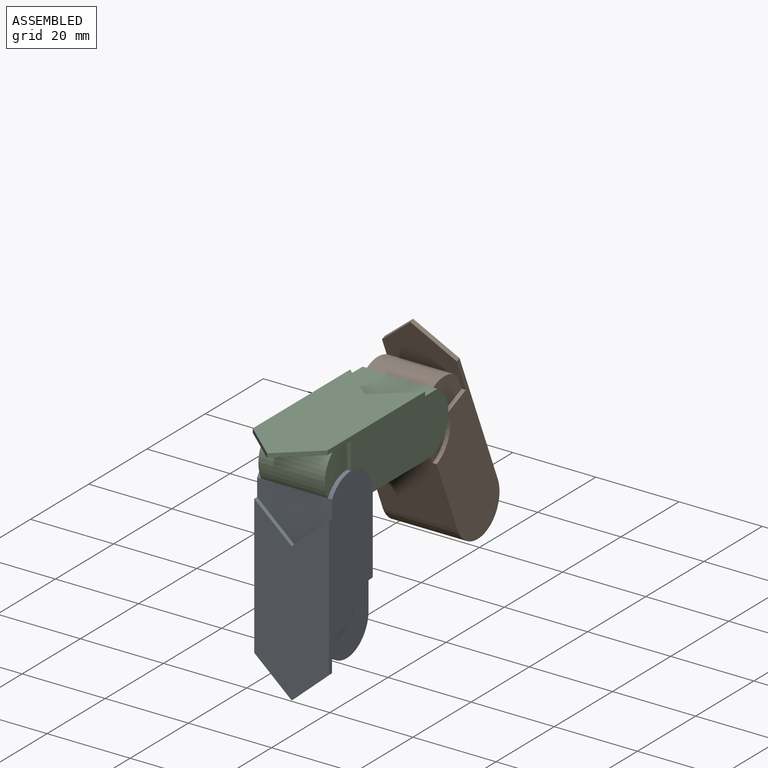
[diagram: assembled view]
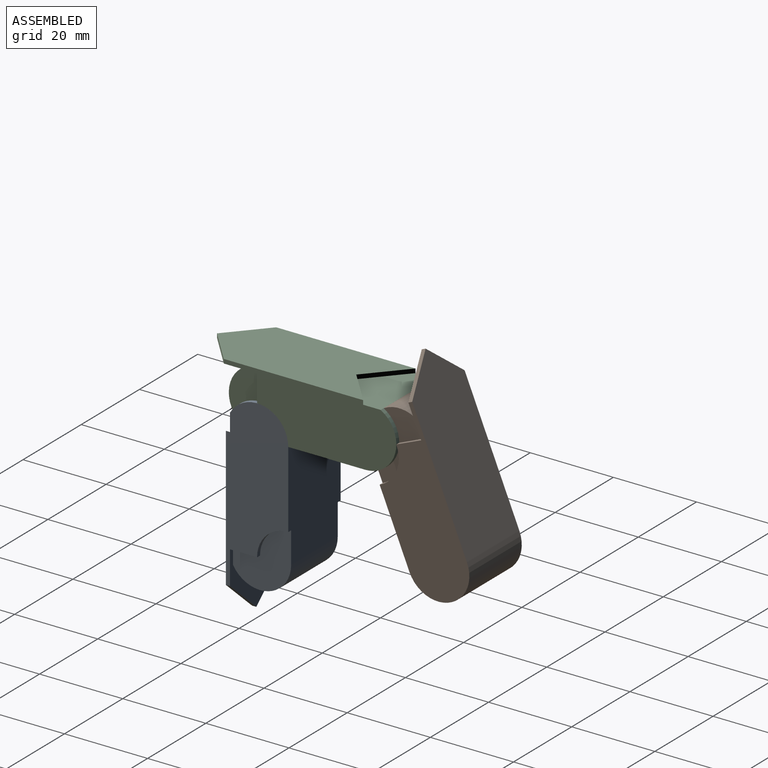
[diagram: assembled view, second angle]
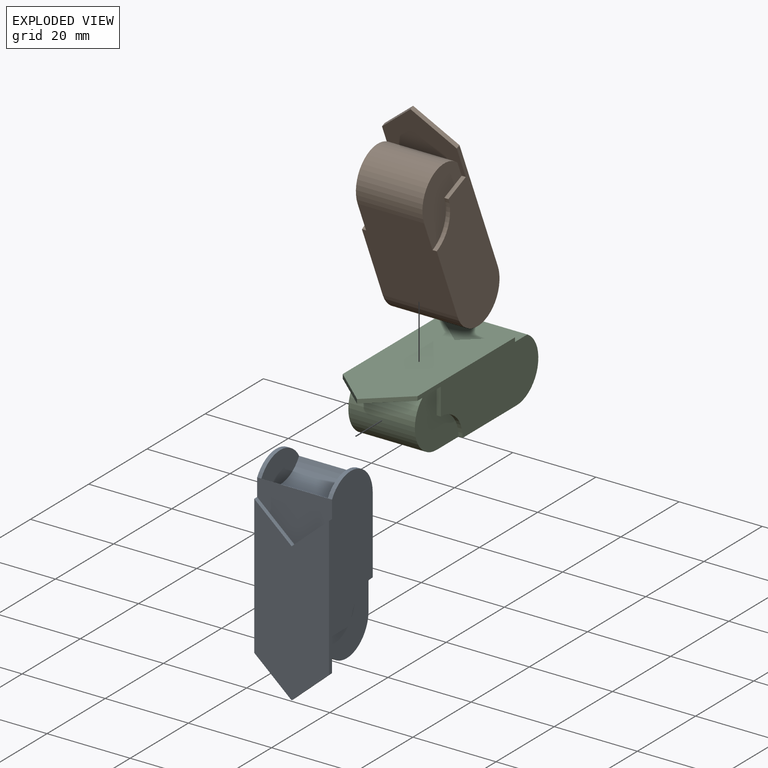
[diagram: exploded view]
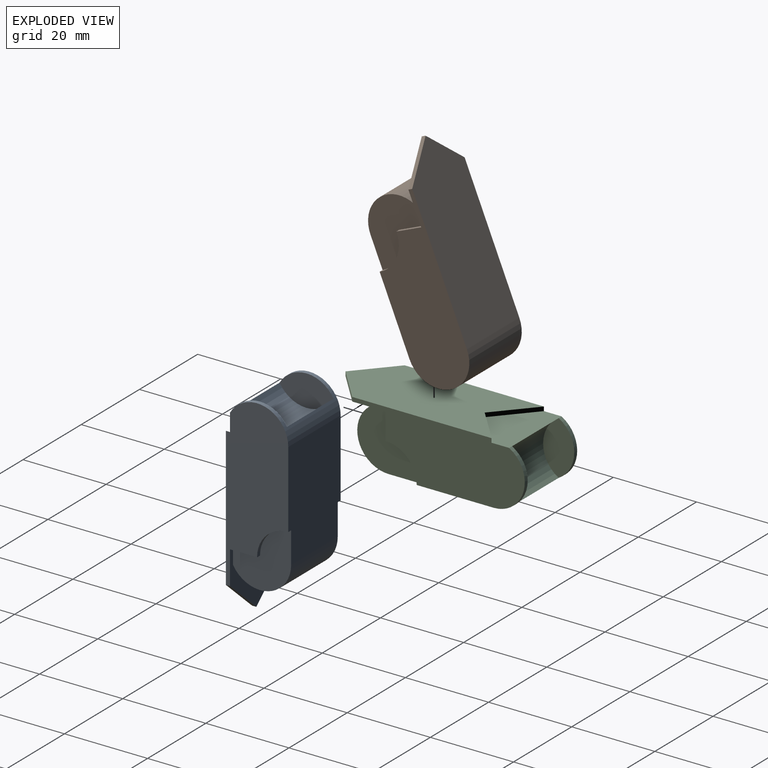
[diagram: exploded view, second angle]
ASSEMBLY  parts=3 mates=2
PART A: 21 faces, bbox 18x15x49.4 mm
  f0: plane 6.5x1mm, normal (0,0,-1), area 6.5mm2, adj f5,f6,f16,f20
  f1: plane 41.5x15mm, normal (-1,0,0), area 439.1mm2, adj f2,f7,f8,f9,f13,f15,f16,f18
  f2: plane 6.5x1mm, normal (0,0,-1), area 6.5mm2, adj f1,f4,f16,f19
  f3: cylinder r=7.5mm len=16mm, axis (1,0,0), area 314.3mm2, adj f4,f5,f9,f16
  f4: plane 15x14mm, normal (-1,0,0), area 130mm2, adj f2,f3,f9,f16,f19
  f5: plane 15x14mm, normal (1,0,0), area 130mm2, adj f0,f3,f9,f16,f20
  f6: plane 41.5x15mm, normal (1,0,0), area 439.1mm2, adj f0,f7,f8,f9,f14,f15,f16,f17
  f7: cylinder r=7.5mm len=18mm, axis (1,0,0), area 102.3mm2, adj f1,f6,f9,f10,f11,f12,f15
  f8: plane 41.44x18mm, normal (0,-1,0), area 603mm2, adj f1,f6,f13,f14,f17,f18
  f9: plane 26x18mm, normal (0,1,0), area 453mm2, adj f1,f3,f4,f5,f6,f7,f19,f20
  f10: cylinder r=7.5mm len=16mm, axis (1,0,0), area 251.3mm2, adj f7,f11,f12
  f11: plane 12.99x7.5mm, normal (1,0,0), area 69.1mm2, adj f7,f10
  f12: plane 12.99x7.5mm, normal (-1,0,0), area 69.1mm2, adj f7,f10
  f13: plane 9x7.94mm, normal (0.66,0,0.75), area 12mm2, adj f1,f8,f14,f15
  f14: plane 9x7.94mm, normal (-0.66,0,0.75), area 12mm2, adj f6,f8,f13,f15
  f15: plane 18x12.18mm, normal (0,-1,0), area 147.8mm2, adj f1,f6,f7,f13,f14
  f16: plane 18x15.94mm, normal (0,1,0), area 155.6mm2, adj f0,f1,f2,f3,f4,f5,f6,f17
  f17: plane 9x7.94mm, normal (0.66,0,-0.75), area 12mm2, adj f6,f8,f16,f18
  f18: plane 9x7.94mm, normal (-0.66,0,-0.75), area 12mm2, adj f1,f8,f16,f17
  f19: cylinder r=7.5mm len=7.5mm, axis (-1,0,0), area 11.8mm2, adj f1,f2,f4,f9
  f20: cylinder r=7.5mm len=7.5mm, axis (1,0,0), area 11.8mm2, adj f0,f5,f6,f9
PART B: 15 faces, bbox 18x15x49.4 mm
  f0: plane 6.5x1mm, normal (0,0,-1), area 6.5mm2, adj f4,f6,f9,f11
  f1: plane 6.5x1mm, normal (0,0,-1), area 6.5mm2, adj f3,f5,f10,f11
  f2: cylinder r=7.5mm len=16mm, axis (1,0,0), area 314.3mm2, adj f3,f4,f8,f11
  f3: plane 15x14mm, normal (-1,0,0), area 130mm2, adj f1,f2,f8,f10,f11
  f4: plane 15x14mm, normal (1,0,0), area 130mm2, adj f0,f2,f8,f9,f11
  f5: plane 41.5x15mm, normal (-1,0,0), area 442.2mm2, adj f1,f7,f8,f10,f11,f13,f14
  f6: plane 41.5x15mm, normal (1,0,0), area 442.2mm2, adj f0,f7,f8,f9,f11,f12,f14
  f7: plane 41.94x18mm, normal (0,-1,0), area 683.4mm2, adj f5,f6,f12,f13,f14
  f8: plane 26x18mm, normal (0,1,0), area 453mm2, adj f2,f3,f4,f5,f6,f9,f10,f14
  f9: cylinder r=7.5mm len=7.5mm, axis (1,0,0), area 11.8mm2, adj f0,f4,f6,f8
  f10: cylinder r=7.5mm len=7.5mm, axis (-1,0,0), area 11.8mm2, adj f1,f3,f5,f8
  f11: plane 18x15.94mm, normal (0,1,0), area 155.6mm2, adj f0,f1,f2,f3,f4,f5,f6,f12
  f12: plane 9x7.94mm, normal (0.66,0,-0.75), area 12mm2, adj f6,f7,f11,f13
  f13: plane 9x7.94mm, normal (-0.66,0,-0.75), area 12mm2, adj f5,f7,f11,f12
  f14: cylinder r=7.5mm len=18mm, axis (-1,0,0), area 424.1mm2, adj f5,f6,f7,f8
PART C: same geometry as A
PLACE A t=(32.38,32.79,-8.89)mm fixed
PLACE B rot(axis=(-1,0,0),157.2deg) t=(32.38,54.92,43.83)mm
PLACE C rot(axis=(-1,0,0),90deg) t=(32.38,15.29,27.11)mm
MATE revolute B.f2 <-> C.f10  axis (1,0,0) through (40.38,58.79,34.61)mm
MATE revolute C.f3 <-> A.f10  axis (1,0,0) through (40.38,25.29,34.61)mm
